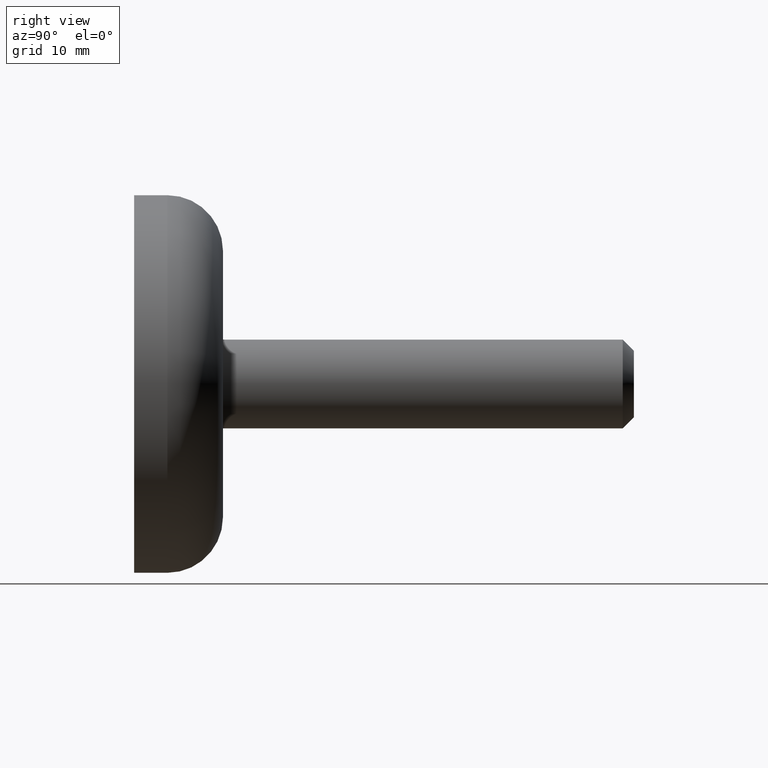
[diagram: clean part render]
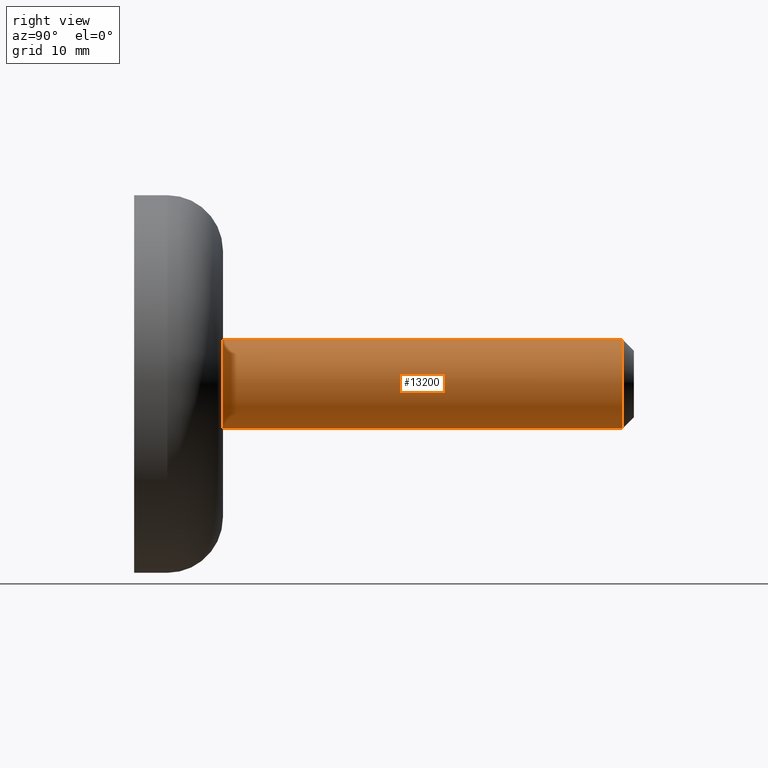
[diagram: same view with one face highlighted and labeled with its STEP entity id]
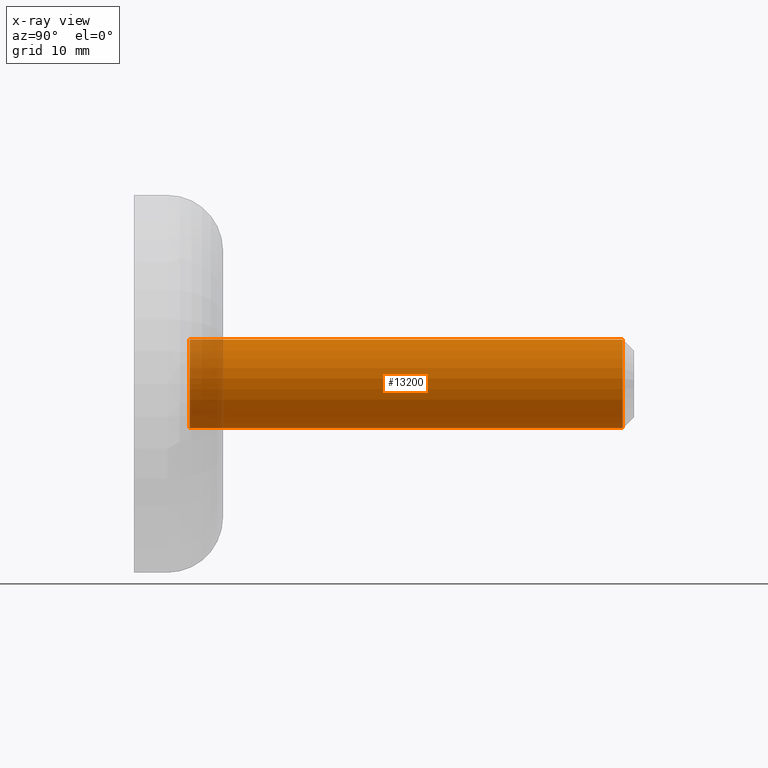
[diagram: x-ray of the same camera — body ghosted, the highlighted face saturated]
A machine part, right view. The second image highlights one B-rep face of the part: STEP entity #13200.
The next image is the same camera in x-ray: the body ghosted, the highlighted face saturated — about 8% of this face is hidden behind the body in this view.
In plain terms, the highlighted cylindrical surface (partial cylindrical patch) has radius 4 mm, axis along (-0, -1, -0).
Its self-contained STEP definition (entity closure, byte-faithful):
#41 = CARTESIAN_POINT ( 'NONE',  ( 0.000000000000000000, 0.000000000000000000, -4.000000000000002665 ) ) ;
#56 = LINE ( 'NONE', #41, #2400 ) ;
#130 = VECTOR ( 'NONE', #12899, 1000.000000000000000 ) ;
#153 = ORIENTED_EDGE ( 'NONE', *, *, #9867, .F. ) ;
#180 = ORIENTED_EDGE ( 'NONE', *, *, #14599, .T. ) ;
#627 = LINE ( 'NONE', #1024, #130 ) ;
#1024 = CARTESIAN_POINT ( 'NONE',  ( 4.898587196589416773E-16, 0.000000000000000000, 4.000000000000002665 ) ) ;
#1727 = VERTEX_POINT ( 'NONE', #15172 ) ;
#2097 = CIRCLE ( 'NONE', #11299, 4.000000000000002665 ) ;
#2400 = VECTOR ( 'NONE', #4787, 1000.000000000000000 ) ;
#2435 = DIRECTION ( 'NONE',  ( 0.000000000000000000, 0.000000000000000000, -1.000000000000000000 ) ) ;
#2626 = CYLINDRICAL_SURFACE ( 'NONE', #12408, 4.000000000000002665 ) ;
#2745 = CARTESIAN_POINT ( 'NONE',  ( 4.898587196589416773E-16, 43.99999999999999289, 4.000000000000002665 ) ) ;
#3592 = EDGE_CURVE ( 'NONE', #1727, #8651, #56, .T. ) ;
#4787 = DIRECTION ( 'NONE',  ( -0.000000000000000000, -1.000000000000000000, -0.000000000000000000 ) ) ;
#4950 = DIRECTION ( 'NONE',  ( -0.000000000000000000, -1.000000000000000000, -0.000000000000000000 ) ) ;
#5911 = DIRECTION ( 'NONE',  ( -0.000000000000000000, -1.000000000000000000, -0.000000000000000000 ) ) ;
#6825 = CARTESIAN_POINT ( 'NONE',  ( 0.000000000000000000, 4.999999999999997335, -4.000000000000005329 ) ) ;
#6896 = CIRCLE ( 'NONE', #12218, 4.000000000000005329 ) ;
#6916 = CARTESIAN_POINT ( 'NONE',  ( 0.000000000000000000, 4.999999999999997335, 0.000000000000000000 ) ) ;
#7092 = ORIENTED_EDGE ( 'NONE', *, *, #3592, .F. ) ;
#7260 = DIRECTION ( 'NONE',  ( 0.000000000000000000, 0.000000000000000000, -1.000000000000000000 ) ) ;
#8072 = VERTEX_POINT ( 'NONE', #2745 ) ;
#8337 = CARTESIAN_POINT ( 'NONE',  ( 0.000000000000000000, 0.000000000000000000, 0.000000000000000000 ) ) ;
#8651 = VERTEX_POINT ( 'NONE', #6825 ) ;
#9772 = EDGE_CURVE ( 'NONE', #1727, #8072, #2097, .T. ) ;
#9867 = EDGE_CURVE ( 'NONE', #8651, #14867, #6896, .T. ) ;
#9899 = ORIENTED_EDGE ( 'NONE', *, *, #9772, .T. ) ;
#10103 = CARTESIAN_POINT ( 'NONE',  ( 4.898587196589419731E-16, 4.999999999999997335, 4.000000000000005329 ) ) ;
#10612 = DIRECTION ( 'NONE',  ( -0.000000000000000000, -1.000000000000000000, -0.000000000000000000 ) ) ;
#10918 = FACE_OUTER_BOUND ( 'NONE', #12931, .T. ) ;
#11299 = AXIS2_PLACEMENT_3D ( 'NONE', #11933, #4950, #13123 ) ;
#11933 = CARTESIAN_POINT ( 'NONE',  ( 0.000000000000000000, 43.99999999999999289, 0.000000000000000000 ) ) ;
#12218 = AXIS2_PLACEMENT_3D ( 'NONE', #6916, #5911, #2435 ) ;
#12408 = AXIS2_PLACEMENT_3D ( 'NONE', #8337, #10612, #7260 ) ;
#12899 = DIRECTION ( 'NONE',  ( -0.000000000000000000, -1.000000000000000000, -0.000000000000000000 ) ) ;
#12931 = EDGE_LOOP ( 'NONE', ( #9899, #180, #153, #7092 ) ) ;
#13123 = DIRECTION ( 'NONE',  ( 0.000000000000000000, 0.000000000000000000, 1.000000000000000000 ) ) ;
#13200 = ADVANCED_FACE ( 'NONE', ( #10918 ), #2626, .T. ) ;
#14599 = EDGE_CURVE ( 'NONE', #8072, #14867, #627, .T. ) ;
#14867 = VERTEX_POINT ( 'NONE', #10103 ) ;
#15172 = CARTESIAN_POINT ( 'NONE',  ( 0.000000000000000000, 43.99999999999999289, -4.000000000000002665 ) ) ;